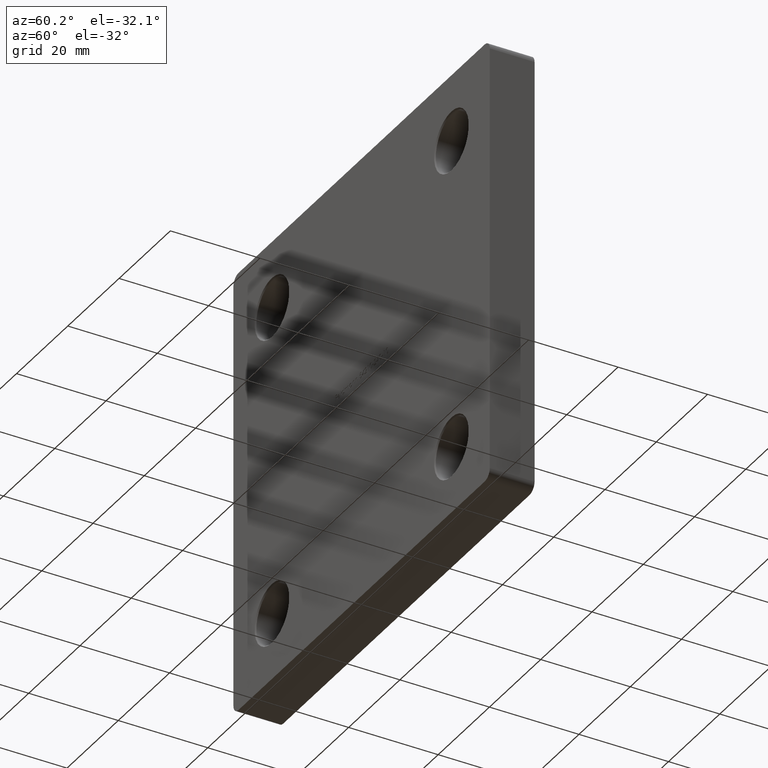
[diagram: clean part render]
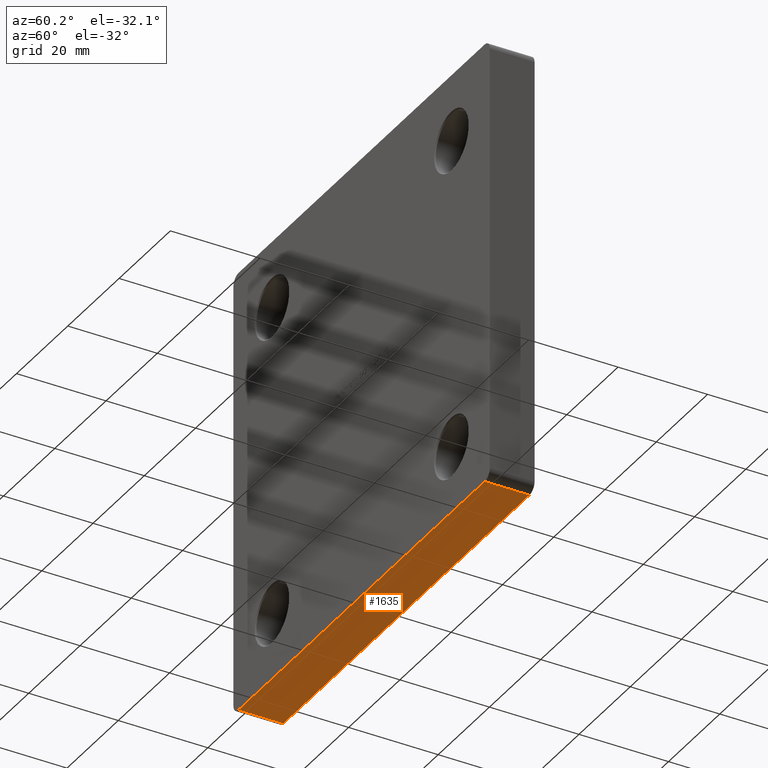
[diagram: same view with one face highlighted and labeled with its STEP entity id]
A machine part, auxiliary view. The second image highlights one B-rep face of the part: STEP entity #1635.
In plain terms, the highlighted planar face has unit normal (0, -0, 1).
Its self-contained STEP definition (entity closure, byte-faithful):
#798 = VECTOR ( 'NONE', #10473, 1000.000000000000000 ) ;
#890 = CARTESIAN_POINT ( 'NONE',  ( 47.99999999999995737, 10.00000000000000000, -49.99999999999999289 ) ) ;
#1059 = DIRECTION ( 'NONE',  ( 1.000000000000000000, 0.000000000000000000, -6.938893903907229610E-17 ) ) ;
#1580 = EDGE_CURVE ( 'NONE', #4479, #10626, #12879, .T. ) ;
#1635 = ADVANCED_FACE ( 'NONE', ( #4930 ), #3237, .F. ) ;
#1706 = ORIENTED_EDGE ( 'NONE', *, *, #12391, .T. ) ;
#1762 = CARTESIAN_POINT ( 'NONE',  ( -48.00000000000000000, 0.000000000000000000, -49.99999999999998579 ) ) ;
#2077 = ORIENTED_EDGE ( 'NONE', *, *, #3410, .F. ) ;
#2101 = DIRECTION ( 'NONE',  ( 0.000000000000000000, -1.000000000000000000, 0.000000000000000000 ) ) ;
#2510 = ORIENTED_EDGE ( 'NONE', *, *, #1580, .T. ) ;
#2529 = AXIS2_PLACEMENT_3D ( 'NONE', #8554, #14027, #1059 ) ;
#2735 = DIRECTION ( 'NONE',  ( -0.000000000000000000, 1.000000000000000000, -0.000000000000000000 ) ) ;
#3237 = PLANE ( 'NONE',  #2529 ) ;
#3352 = LINE ( 'NONE', #13564, #13032 ) ;
#3410 = EDGE_CURVE ( 'NONE', #4479, #8354, #3352, .T. ) ;
#3732 = LINE ( 'NONE', #12466, #12070 ) ;
#3861 = DIRECTION ( 'NONE',  ( -1.000000000000000000, -0.000000000000000000, 6.938893903907229610E-17 ) ) ;
#4479 = VERTEX_POINT ( 'NONE', #890 ) ;
#4930 = FACE_OUTER_BOUND ( 'NONE', #8005, .T. ) ;
#6487 = CARTESIAN_POINT ( 'NONE',  ( 47.99999999999998579, 10.00000000000000000, -49.99999999999999289 ) ) ;
#7013 = CARTESIAN_POINT ( 'NONE',  ( -48.00000000000000000, 10.00000000000000000, -49.99999999999998579 ) ) ;
#8005 = EDGE_LOOP ( 'NONE', ( #2077, #2510, #1706, #11004 ) ) ;
#8354 = VERTEX_POINT ( 'NONE', #7013 ) ;
#8554 = CARTESIAN_POINT ( 'NONE',  ( -50.00000000000000000, 10.00000000000000000, -49.99999999999998579 ) ) ;
#8713 = CARTESIAN_POINT ( 'NONE',  ( 47.99999999999995737, 0.000000000000000000, -49.99999999999999289 ) ) ;
#9336 = VECTOR ( 'NONE', #2101, 1000.000000000000000 ) ;
#10163 = LINE ( 'NONE', #13667, #798 ) ;
#10473 = DIRECTION ( 'NONE',  ( -1.000000000000000000, -0.000000000000000000, 6.938893903907229610E-17 ) ) ;
#10626 = VERTEX_POINT ( 'NONE', #8713 ) ;
#11004 = ORIENTED_EDGE ( 'NONE', *, *, #12498, .T. ) ;
#11135 = VERTEX_POINT ( 'NONE', #1762 ) ;
#12070 = VECTOR ( 'NONE', #2735, 1000.000000000000000 ) ;
#12391 = EDGE_CURVE ( 'NONE', #10626, #11135, #10163, .T. ) ;
#12466 = CARTESIAN_POINT ( 'NONE',  ( -48.00000000000000000, 10.00000000000000000, -49.99999999999998579 ) ) ;
#12498 = EDGE_CURVE ( 'NONE', #11135, #8354, #3732, .T. ) ;
#12879 = LINE ( 'NONE', #6487, #9336 ) ;
#13032 = VECTOR ( 'NONE', #3861, 1000.000000000000000 ) ;
#13564 = CARTESIAN_POINT ( 'NONE',  ( -50.00000000000000000, 10.00000000000000000, -49.99999999999998579 ) ) ;
#13667 = CARTESIAN_POINT ( 'NONE',  ( -50.00000000000000000, 0.000000000000000000, -49.99999999999998579 ) ) ;
#14027 = DIRECTION ( 'NONE',  ( 6.938893903907229610E-17, -0.000000000000000000, 1.000000000000000000 ) ) ;